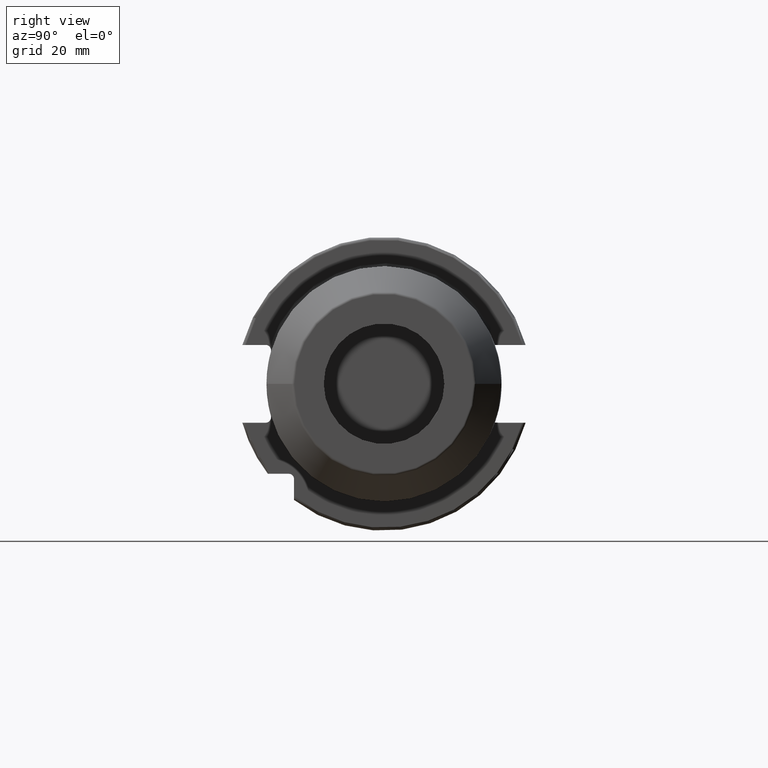
[diagram: clean part render]
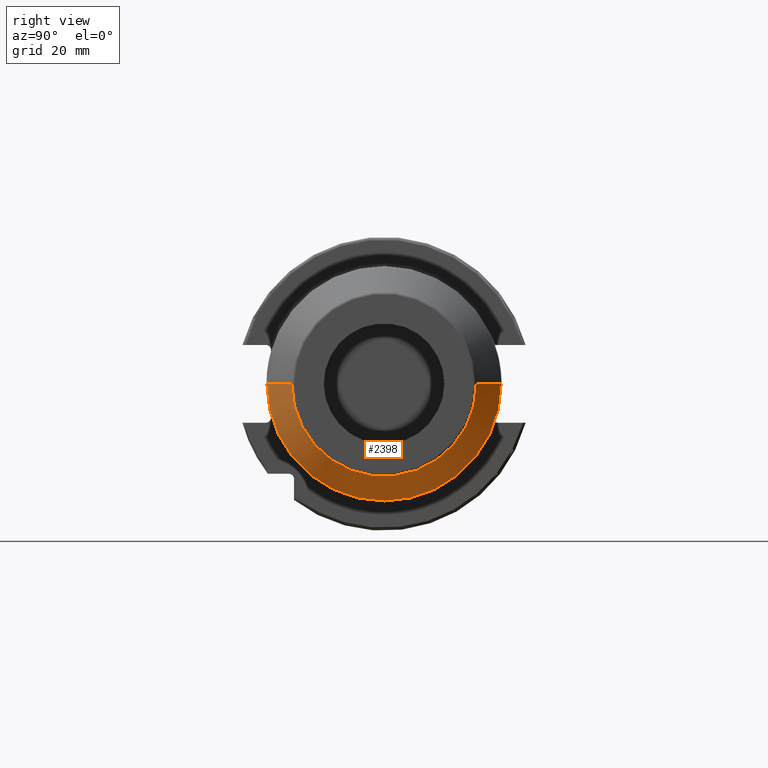
[diagram: same view with one face highlighted and labeled with its STEP entity id]
A machine part, right view. The second image highlights one B-rep face of the part: STEP entity #2398.
In plain terms, the highlighted conical surface has half-angle 30 deg.
Its self-contained STEP definition (entity closure, byte-faithful):
#578=CARTESIAN_POINT('',(8.523205080757E1,0.E0,0.E0));
#579=DIRECTION('',(-1.E0,0.E0,0.E0));
#580=DIRECTION('',(0.E0,1.E0,0.E0));
#581=AXIS2_PLACEMENT_3D('',#578,#579,#580);
#583=DIRECTION('',(-8.660254037844E-1,-5.E-1,4.742561719327E-14));
#584=VECTOR('',#583,1.647520861407E1);
#585=CARTESIAN_POINT('',(9.95E1,-3.062842109675E1,3.436596755705E-13));
#586=LINE('',#585,#584);
#587=CARTESIAN_POINT('',(9.95E1,0.E0,0.E0));
#588=DIRECTION('',(-1.E0,0.E0,0.E0));
#589=DIRECTION('',(0.E0,1.E0,0.E0));
#590=AXIS2_PLACEMENT_3D('',#587,#588,#589);
#592=DIRECTION('',(-8.660254037844E-1,5.E-1,-4.715579194350E-14));
#593=VECTOR('',#592,1.647520861407E1);
#594=CARTESIAN_POINT('',(9.95E1,3.062842109675E1,-3.513975165428E-13));
#595=LINE('',#594,#593);
#1812=CARTESIAN_POINT('',(8.523205080757E1,3.886602540378E1,0.E0));
#1813=CARTESIAN_POINT('',(8.523205080757E1,-3.886602540378E1,0.E0));
#1814=VERTEX_POINT('',#1812);
#1815=VERTEX_POINT('',#1813);
#1816=CARTESIAN_POINT('',(9.95E1,3.062842109675E1,0.E0));
#1817=CARTESIAN_POINT('',(9.95E1,-3.062842109675E1,0.E0));
#1818=VERTEX_POINT('',#1816);
#1819=VERTEX_POINT('',#1817);
#2384=CARTESIAN_POINT('',(9.236602540378E1,0.E0,0.E0));
#2385=DIRECTION('',(-1.E0,0.E0,0.E0));
#2386=DIRECTION('',(0.E0,1.E0,0.E0));
#2387=AXIS2_PLACEMENT_3D('',#2384,#2385,#2386);
#2388=CONICAL_SURFACE('',#2387,3.474722325027E1,3.E1);
#2390=ORIENTED_EDGE('',*,*,#2389,.T.);
#2392=ORIENTED_EDGE('',*,*,#2391,.F.);
#2393=ORIENTED_EDGE('',*,*,#2374,.F.);
#2395=ORIENTED_EDGE('',*,*,#2394,.T.);
#2396=EDGE_LOOP('',(#2390,#2392,#2393,#2395));
#2397=FACE_OUTER_BOUND('',#2396,.F.);
#2398=ADVANCED_FACE('',(#2397),#2388,.T.);
#582=CIRCLE('',#581,3.886602540378E1);
#591=CIRCLE('',#590,3.062842109675E1);
#2374=EDGE_CURVE('',#1818,#1819,#591,.T.);
#2389=EDGE_CURVE('',#1814,#1815,#582,.T.);
#2391=EDGE_CURVE('',#1819,#1815,#586,.T.);
#2394=EDGE_CURVE('',#1818,#1814,#595,.T.);